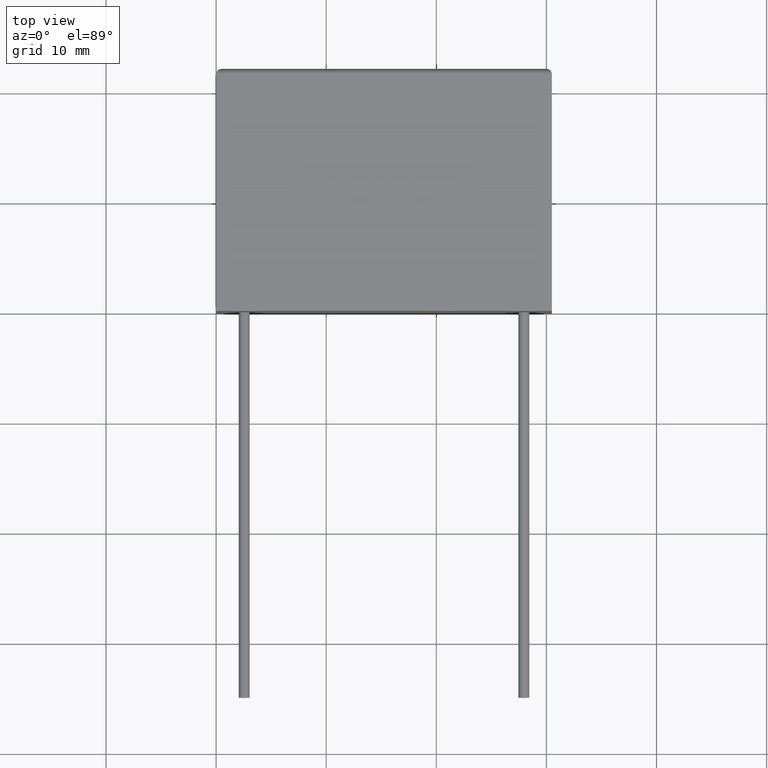
[diagram: clean part render]
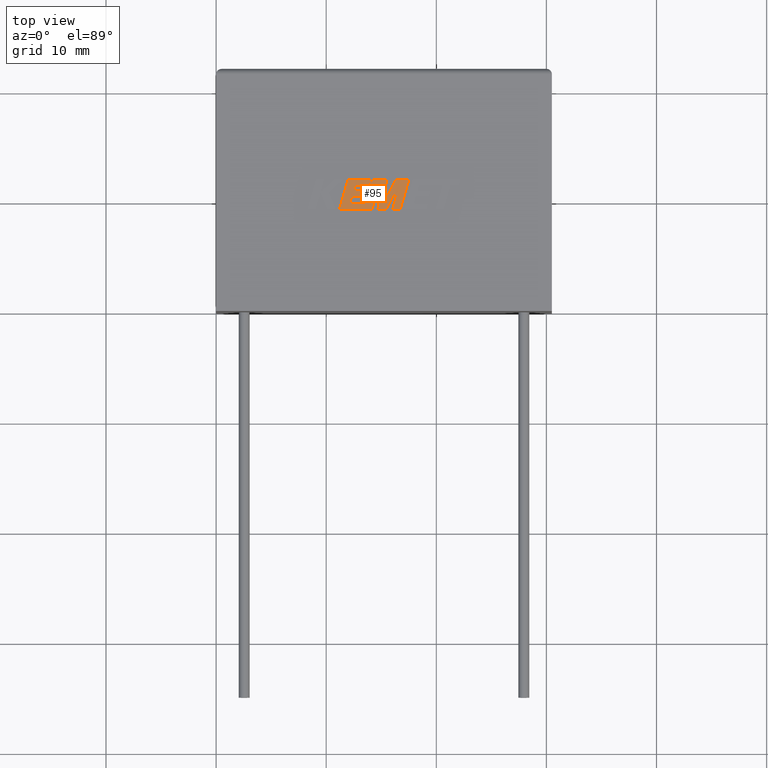
[diagram: same view with one face highlighted and labeled with its STEP entity id]
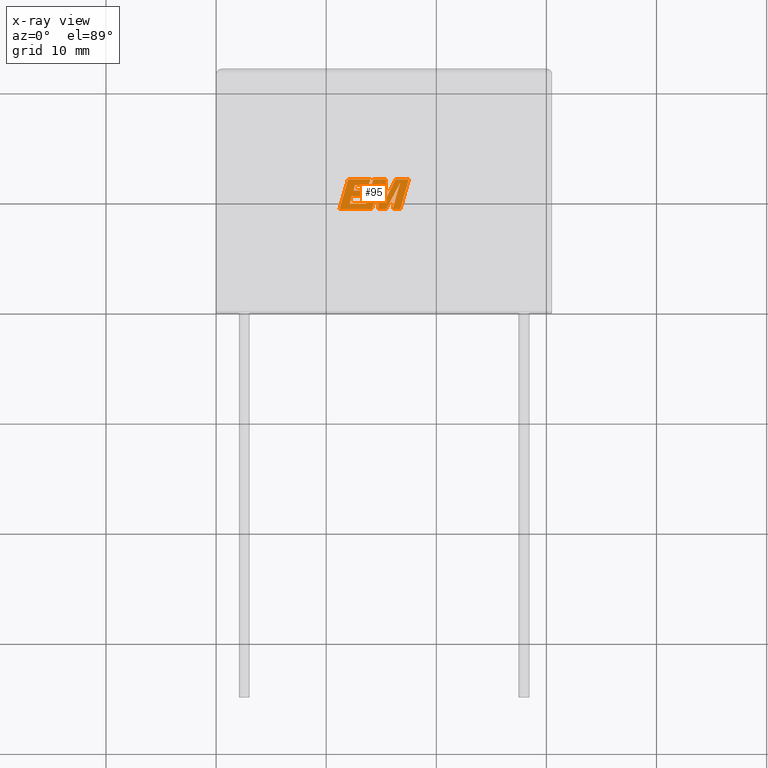
[diagram: x-ray of the same camera — body ghosted, the highlighted face saturated]
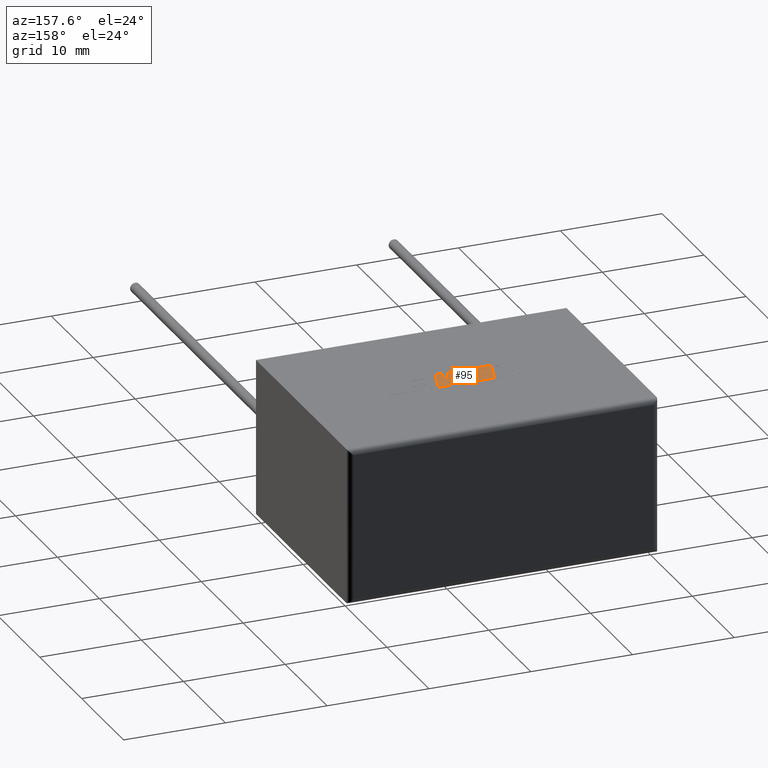
[diagram: same view with one face highlighted and labeled with its STEP entity id]
A machine part, top view. The second image highlights one B-rep face of the part: STEP entity #95.
The next image is the same camera in x-ray: the body ghosted, the highlighted face saturated — about 0% of this face is hidden behind the body in this view.
A second angle (auxiliary view) of the same face is appended — the face is thin or edge-on in the first view.
In plain terms, the highlighted planar face has unit normal (0, 0, -1).
Its self-contained STEP definition (entity closure, byte-faithful):
#1 = ORIENTED_EDGE ( 'NONE', *, *, #1128, .T. ) ;
#20 = DIRECTION ( 'NONE',  ( -1.000000000000000000, 0.0000000000000000000, 0.0000000000000000000 ) ) ;
#21 = LINE ( 'NONE', #993, #1970 ) ;
#33 = VERTEX_POINT ( 'NONE', #2070 ) ;
#34 = ORIENTED_EDGE ( 'NONE', *, *, #2232, .T. ) ;
#50 = EDGE_CURVE ( 'NONE', #2398, #33, #1109, .T. ) ;
#64 = ORIENTED_EDGE ( 'NONE', *, *, #50, .T. ) ;
#66 = EDGE_CURVE ( 'NONE', #1254, #1585, #2163, .T. ) ;
#95 = ADVANCED_FACE ( 'NONE', ( #868 ), #1743, .F. ) ;
#99 = VECTOR ( 'NONE', #597, 1000.000000000000100 ) ;
#112 = LINE ( 'NONE', #2297, #2450 ) ;
#122 = LINE ( 'NONE', #2294, #717 ) ;
#125 = VERTEX_POINT ( 'NONE', #390 ) ;
#127 = CARTESIAN_POINT ( 'NONE',  ( 13.86120531882747800, 11.43739126422981500, 15.30500000000000100 ) ) ;
#131 = DIRECTION ( 'NONE',  ( -1.000000000000000000, 0.0000000000000000000, 0.0000000000000000000 ) ) ;
#140 = CARTESIAN_POINT ( 'NONE',  ( 15.34034408245423200, 10.00511101898241300, 15.30500000000000100 ) ) ;
#147 = LINE ( 'NONE', #1558, #2341 ) ;
#149 = ORIENTED_EDGE ( 'NONE', *, *, #1234, .T. ) ;
#151 = ORIENTED_EDGE ( 'NONE', *, *, #2327, .T. ) ;
#158 = CARTESIAN_POINT ( 'NONE',  ( 14.84636241446146900, 11.65772222130387300, 15.30500000000000100 ) ) ;
#168 = CARTESIAN_POINT ( 'NONE',  ( 16.72921401211593600, 11.66943930093434600, 15.30500000000000100 ) ) ;
#185 = DIRECTION ( 'NONE',  ( -0.2765379750249970000, -0.9610029908221274800, 0.0000000000000000000 ) ) ;
#188 = EDGE_CURVE ( 'NONE', #1613, #1025, #122, .T. ) ;
#203 = CARTESIAN_POINT ( 'NONE',  ( 16.72921401211593600, 11.66943930093434600, 15.30500000000000100 ) ) ;
#216 = VERTEX_POINT ( 'NONE', #814 ) ;
#219 = VECTOR ( 'NONE', #534, 1000.000000000000100 ) ;
#226 = DIRECTION ( 'NONE',  ( -0.4443210308329521600, -0.8958676361826800600, 0.0000000000000000000 ) ) ;
#234 = ORIENTED_EDGE ( 'NONE', *, *, #1101, .T. ) ;
#243 = EDGE_CURVE ( 'NONE', #1580, #1550, #147, .T. ) ;
#303 = CARTESIAN_POINT ( 'NONE',  ( 13.86120531882747800, 11.43739126422981500, 15.30500000000000100 ) ) ;
#343 = VERTEX_POINT ( 'NONE', #2239 ) ;
#364 = EDGE_CURVE ( 'NONE', #2165, #343, #2048, .T. ) ;
#365 = DIRECTION ( 'NONE',  ( -1.000000000000000000, 0.0000000000000000000, 0.0000000000000000000 ) ) ;
#368 = AXIS2_PLACEMENT_3D ( 'NONE', #572, #1539, #20 ) ;
#389 = CARTESIAN_POINT ( 'NONE',  ( 11.98990460110053400, 11.95760467011252200, 15.30500000000000100 ) ) ;
#390 = CARTESIAN_POINT ( 'NONE',  ( 11.20345587573266000, 9.224599999999998800, 15.30500000000000100 ) ) ;
#395 = DIRECTION ( 'NONE',  ( 0.2763139702539114100, 0.9610674221107072800, 0.0000000000000000000 ) ) ;
#410 = ORIENTED_EDGE ( 'NONE', *, *, #1923, .T. ) ;
#523 = VECTOR ( 'NONE', #2082, 1000.000000000000000 ) ;
#533 = DIRECTION ( 'NONE',  ( 0.2746459304916891200, 0.9615454294334481200, 0.0000000000000000000 ) ) ;
#534 = DIRECTION ( 'NONE',  ( -0.05596501978069497200, -0.9984327301130238000, 0.0000000000000000000 ) ) ;
#558 = ORIENTED_EDGE ( 'NONE', *, *, #2094, .T. ) ;
#562 = CARTESIAN_POINT ( 'NONE',  ( 16.30871703926905200, 11.95760467011252200, 15.30500000000000100 ) ) ;
#563 = VERTEX_POINT ( 'NONE', #1406 ) ;
#572 = CARTESIAN_POINT ( 'NONE',  ( 0.04135901642317307800, 2.316512659225987900, 15.30500000000000100 ) ) ;
#597 = DIRECTION ( 'NONE',  ( 0.2759782365590722800, 0.9611638845408959600, 0.0000000000000000000 ) ) ;
#603 = LINE ( 'NONE', #1898, #99 ) ;
#608 = LINE ( 'NONE', #1714, #1102 ) ;
#648 = ORIENTED_EDGE ( 'NONE', *, *, #364, .T. ) ;
#694 = LINE ( 'NONE', #1033, #2266 ) ;
#703 = CARTESIAN_POINT ( 'NONE',  ( 13.64544485380194100, 9.744555796335491800, 15.30500000000000100 ) ) ;
#717 = VECTOR ( 'NONE', #365, 1000.000000000000000 ) ;
#724 = DIRECTION ( 'NONE',  ( 0.2740217765954059400, 0.9617234872620598100, 0.0000000000000000000 ) ) ;
#730 = EDGE_CURVE ( 'NONE', #901, #2165, #2406, .T. ) ;
#734 = LINE ( 'NONE', #2279, #1069 ) ;
#745 = EDGE_CURVE ( 'NONE', #1022, #1613, #1119, .T. ) ;
#774 = VECTOR ( 'NONE', #724, 1000.000000000000000 ) ;
#809 = VERTEX_POINT ( 'NONE', #562 ) ;
#814 = CARTESIAN_POINT ( 'NONE',  ( 14.84636241446146900, 11.65772222130387300, 15.30500000000000100 ) ) ;
#831 = VERTEX_POINT ( 'NONE', #2131 ) ;
#868 = FACE_OUTER_BOUND ( 'NONE', #1393, .T. ) ;
#870 = VERTEX_POINT ( 'NONE', #1291 ) ;
#899 = ORIENTED_EDGE ( 'NONE', *, *, #1592, .T. ) ;
#901 = VERTEX_POINT ( 'NONE', #2093 ) ;
#908 = VECTOR ( 'NONE', #1722, 1000.000000000000000 ) ;
#952 = CARTESIAN_POINT ( 'NONE',  ( 15.43857353521400100, 9.224599999999998800, 15.30500000000000100 ) ) ;
#979 = LINE ( 'NONE', #140, #2444 ) ;
#993 = CARTESIAN_POINT ( 'NONE',  ( 14.28155762827025300, 11.95760467011252200, 15.30500000000000100 ) ) ;
#995 = ORIENTED_EDGE ( 'NONE', *, *, #66, .T. ) ;
#1022 = VERTEX_POINT ( 'NONE', #1129 ) ;
#1025 = VERTEX_POINT ( 'NONE', #1155 ) ;
#1033 = CARTESIAN_POINT ( 'NONE',  ( 16.30871703926905200, 11.95760467011252200, 15.30500000000000100 ) ) ;
#1036 = VECTOR ( 'NONE', #1694, 1000.000000000000000 ) ;
#1069 = VECTOR ( 'NONE', #131, 1000.000000000000000 ) ;
#1080 = CARTESIAN_POINT ( 'NONE',  ( 14.14774192864402900, 9.224599999999998800, 15.30500000000000100 ) ) ;
#1101 = EDGE_CURVE ( 'NONE', #831, #1022, #112, .T. ) ;
#1102 = VECTOR ( 'NONE', #1302, 1000.000000000000000 ) ;
#1109 = LINE ( 'NONE', #1116, #1373 ) ;
#1116 = CARTESIAN_POINT ( 'NONE',  ( 14.70997893149140800, 9.224599999999998800, 15.30500000000000100 ) ) ;
#1119 = LINE ( 'NONE', #1697, #1181 ) ;
#1120 = DIRECTION ( 'NONE',  ( 0.2793947940878305800, 0.9601763114327590600, 0.0000000000000000000 ) ) ;
#1128 = EDGE_CURVE ( 'NONE', #2053, #870, #2187, .T. ) ;
#1129 = CARTESIAN_POINT ( 'NONE',  ( 13.49682907209673000, 10.42381401580202300, 15.30500000000000100 ) ) ;
#1141 = ORIENTED_EDGE ( 'NONE', *, *, #188, .T. ) ;
#1145 = DIRECTION ( 'NONE',  ( 0.4668459304955088200, 0.8843386665637675800, 0.0000000000000000000 ) ) ;
#1150 = VERTEX_POINT ( 'NONE', #1976 ) ;
#1155 = CARTESIAN_POINT ( 'NONE',  ( 12.46810271999845600, 10.92905282770972900, 15.30500000000000100 ) ) ;
#1158 = CARTESIAN_POINT ( 'NONE',  ( 13.64114028129114900, 10.92905282770972900, 15.30500000000000100 ) ) ;
#1181 = VECTOR ( 'NONE', #533, 1000.000000000000100 ) ;
#1218 = VECTOR ( 'NONE', #1530, 1000.000000000000000 ) ;
#1234 = EDGE_CURVE ( 'NONE', #343, #1953, #608, .T. ) ;
#1254 = VERTEX_POINT ( 'NONE', #1861 ) ;
#1258 = EDGE_CURVE ( 'NONE', #1585, #831, #1571, .T. ) ;
#1288 = CARTESIAN_POINT ( 'NONE',  ( 12.13041814687692700, 9.744555796335491800, 15.30500000000000100 ) ) ;
#1289 = ORIENTED_EDGE ( 'NONE', *, *, #2200, .T. ) ;
#1291 = CARTESIAN_POINT ( 'NONE',  ( 16.02713657230754400, 9.224599999999998800, 15.30500000000000100 ) ) ;
#1293 = ORIENTED_EDGE ( 'NONE', *, *, #1994, .T. ) ;
#1302 = DIRECTION ( 'NONE',  ( -1.000000000000000000, 0.0000000000000000000, 0.0000000000000000000 ) ) ;
#1330 = DIRECTION ( 'NONE',  ( -0.2760118818968581000, -0.9611542233438683500, 0.0000000000000000000 ) ) ;
#1359 = VECTOR ( 'NONE', #1145, 1000.000000000000000 ) ;
#1373 = VECTOR ( 'NONE', #1701, 1000.000000000000000 ) ;
#1375 = VERTEX_POINT ( 'NONE', #1080 ) ;
#1393 = EDGE_LOOP ( 'NONE', ( #2021, #1289, #410, #2220, #2144, #995, #1405, #234, #1768, #1141, #1293, #2317, #648, #149, #899, #1647, #151, #34, #64, #558, #1, #1494, #2364 ) ) ;
#1405 = ORIENTED_EDGE ( 'NONE', *, *, #1258, .T. ) ;
#1406 = CARTESIAN_POINT ( 'NONE',  ( 15.34034408245423200, 10.00511101898241300, 15.30500000000000100 ) ) ;
#1420 = DIRECTION ( 'NONE',  ( -1.000000000000000000, 0.0000000000000000000, 0.0000000000000000000 ) ) ;
#1448 = DIRECTION ( 'NONE',  ( -0.2762517575166415500, -0.9610853065513833600, 0.0000000000000000000 ) ) ;
#1492 = CARTESIAN_POINT ( 'NONE',  ( 12.61602046292478200, 11.43739126422981500, 15.30500000000000100 ) ) ;
#1494 = ORIENTED_EDGE ( 'NONE', *, *, #1557, .T. ) ;
#1530 = DIRECTION ( 'NONE',  ( 1.000000000000000000, 1.410797975395186500E-015, 0.0000000000000000000 ) ) ;
#1539 = DIRECTION ( 'NONE',  ( 0.0000000000000000000, 0.0000000000000000000, -1.000000000000000000 ) ) ;
#1550 = VERTEX_POINT ( 'NONE', #1710 ) ;
#1557 = EDGE_CURVE ( 'NONE', #870, #1580, #1736, .T. ) ;
#1558 = CARTESIAN_POINT ( 'NONE',  ( 16.72163530528773000, 9.224599999999998800, 15.30500000000000100 ) ) ;
#1571 = LINE ( 'NONE', #1288, #774 ) ;
#1580 = VERTEX_POINT ( 'NONE', #1913 ) ;
#1585 = VERTEX_POINT ( 'NONE', #2319 ) ;
#1592 = EDGE_CURVE ( 'NONE', #1953, #125, #2211, .T. ) ;
#1613 = VERTEX_POINT ( 'NONE', #1158 ) ;
#1647 = ORIENTED_EDGE ( 'NONE', *, *, #2039, .T. ) ;
#1673 = CARTESIAN_POINT ( 'NONE',  ( 11.20345587573266000, 9.224599999999998800, 15.30500000000000100 ) ) ;
#1674 = VECTOR ( 'NONE', #2246, 1000.000000000000100 ) ;
#1694 = DIRECTION ( 'NONE',  ( 1.000000000000000000, 3.986449806627419600E-016, 0.0000000000000000000 ) ) ;
#1697 = CARTESIAN_POINT ( 'NONE',  ( 13.49682907209673000, 10.42381401580202300, 15.30500000000000100 ) ) ;
#1701 = DIRECTION ( 'NONE',  ( 1.000000000000000000, 0.0000000000000000000, 0.0000000000000000000 ) ) ;
#1710 = CARTESIAN_POINT ( 'NONE',  ( 17.50739429965959800, 11.95760467011252200, 15.30500000000000100 ) ) ;
#1714 = CARTESIAN_POINT ( 'NONE',  ( 14.00895686204292000, 11.95760467011252200, 15.30500000000000100 ) ) ;
#1722 = DIRECTION ( 'NONE',  ( 1.000000000000000000, 0.0000000000000000000, 0.0000000000000000000 ) ) ;
#1734 = EDGE_CURVE ( 'NONE', #1550, #809, #2389, .T. ) ;
#1736 = LINE ( 'NONE', #2307, #1218 ) ;
#1742 = VECTOR ( 'NONE', #1330, 1000.000000000000100 ) ;
#1743 = PLANE ( 'NONE',  #368 ) ;
#1768 = ORIENTED_EDGE ( 'NONE', *, *, #745, .T. ) ;
#1806 = CARTESIAN_POINT ( 'NONE',  ( 14.70997893149140800, 9.224599999999998800, 15.30500000000000100 ) ) ;
#1809 = EDGE_CURVE ( 'NONE', #1150, #1254, #21, .T. ) ;
#1838 = LINE ( 'NONE', #158, #219 ) ;
#1861 = CARTESIAN_POINT ( 'NONE',  ( 13.64544485380194100, 9.744555796335491800, 15.30500000000000100 ) ) ;
#1869 = DIRECTION ( 'NONE',  ( 0.05375259206908614100, 0.9985542843760946100, 0.0000000000000000000 ) ) ;
#1898 = CARTESIAN_POINT ( 'NONE',  ( 14.14774192864402900, 9.224599999999998800, 15.30500000000000100 ) ) ;
#1907 = LINE ( 'NONE', #1673, #1036 ) ;
#1913 = CARTESIAN_POINT ( 'NONE',  ( 16.72163530528773000, 9.224599999999998800, 15.30500000000000100 ) ) ;
#1915 = DIRECTION ( 'NONE',  ( 1.000000000000000000, 0.0000000000000000000, 0.0000000000000000000 ) ) ;
#1923 = EDGE_CURVE ( 'NONE', #563, #2309, #979, .T. ) ;
#1953 = VERTEX_POINT ( 'NONE', #2233 ) ;
#1970 = VECTOR ( 'NONE', #1448, 1000.000000000000100 ) ;
#1976 = CARTESIAN_POINT ( 'NONE',  ( 14.28155762827025300, 11.95760467011252200, 15.30500000000000100 ) ) ;
#1994 = EDGE_CURVE ( 'NONE', #1025, #901, #2301, .T. ) ;
#2021 = ORIENTED_EDGE ( 'NONE', *, *, #1734, .T. ) ;
#2039 = EDGE_CURVE ( 'NONE', #125, #1375, #1907, .T. ) ;
#2048 = LINE ( 'NONE', #127, #1674 ) ;
#2053 = VERTEX_POINT ( 'NONE', #203 ) ;
#2064 = VECTOR ( 'NONE', #1120, 1000.000000000000100 ) ;
#2070 = CARTESIAN_POINT ( 'NONE',  ( 15.43857353521400100, 9.224599999999998800, 15.30500000000000100 ) ) ;
#2082 = DIRECTION ( 'NONE',  ( -1.000000000000000000, 0.0000000000000000000, 0.0000000000000000000 ) ) ;
#2093 = CARTESIAN_POINT ( 'NONE',  ( 12.61602046292478200, 11.43739126422981500, 15.30500000000000100 ) ) ;
#2094 = EDGE_CURVE ( 'NONE', #33, #2053, #2383, .T. ) ;
#2101 = VECTOR ( 'NONE', #185, 1000.000000000000200 ) ;
#2131 = CARTESIAN_POINT ( 'NONE',  ( 12.32395771051506900, 10.42381401580202300, 15.30500000000000100 ) ) ;
#2144 = ORIENTED_EDGE ( 'NONE', *, *, #1809, .T. ) ;
#2152 = VECTOR ( 'NONE', #1420, 1000.000000000000000 ) ;
#2163 = LINE ( 'NONE', #703, #523 ) ;
#2165 = VERTEX_POINT ( 'NONE', #303 ) ;
#2187 = LINE ( 'NONE', #168, #1742 ) ;
#2200 = EDGE_CURVE ( 'NONE', #809, #563, #694, .T. ) ;
#2211 = LINE ( 'NONE', #389, #2101 ) ;
#2220 = ORIENTED_EDGE ( 'NONE', *, *, #2357, .T. ) ;
#2232 = EDGE_CURVE ( 'NONE', #216, #2398, #1838, .T. ) ;
#2233 = CARTESIAN_POINT ( 'NONE',  ( 11.98990460110053400, 11.95760467011252200, 15.30500000000000100 ) ) ;
#2239 = CARTESIAN_POINT ( 'NONE',  ( 14.00895686204292000, 11.95760467011252200, 15.30500000000000100 ) ) ;
#2246 = DIRECTION ( 'NONE',  ( 0.2732148821746286400, 0.9619530280415482500, 0.0000000000000000000 ) ) ;
#2266 = VECTOR ( 'NONE', #226, 1000.000000000000000 ) ;
#2279 = CARTESIAN_POINT ( 'NONE',  ( 15.44544762703744000, 11.95760467011252200, 15.30500000000000100 ) ) ;
#2294 = CARTESIAN_POINT ( 'NONE',  ( 13.64114028129114900, 10.92905282770972900, 15.30500000000000100 ) ) ;
#2297 = CARTESIAN_POINT ( 'NONE',  ( 12.32395771051506900, 10.42381401580202300, 15.30500000000000100 ) ) ;
#2301 = LINE ( 'NONE', #2400, #2064 ) ;
#2307 = CARTESIAN_POINT ( 'NONE',  ( 16.02713657230754400, 9.224599999999998800, 15.30500000000000100 ) ) ;
#2309 = VERTEX_POINT ( 'NONE', #2365 ) ;
#2317 = ORIENTED_EDGE ( 'NONE', *, *, #730, .T. ) ;
#2319 = CARTESIAN_POINT ( 'NONE',  ( 12.13041814687692700, 9.744555796335491800, 15.30500000000000100 ) ) ;
#2327 = EDGE_CURVE ( 'NONE', #1375, #216, #603, .T. ) ;
#2341 = VECTOR ( 'NONE', #395, 1000.000000000000200 ) ;
#2357 = EDGE_CURVE ( 'NONE', #2309, #1150, #734, .T. ) ;
#2361 = CARTESIAN_POINT ( 'NONE',  ( 17.50739429965959800, 11.95760467011252200, 15.30500000000000100 ) ) ;
#2364 = ORIENTED_EDGE ( 'NONE', *, *, #243, .T. ) ;
#2365 = CARTESIAN_POINT ( 'NONE',  ( 15.44544762703744000, 11.95760467011252200, 15.30500000000000100 ) ) ;
#2383 = LINE ( 'NONE', #952, #1359 ) ;
#2389 = LINE ( 'NONE', #2361, #2152 ) ;
#2398 = VERTEX_POINT ( 'NONE', #1806 ) ;
#2400 = CARTESIAN_POINT ( 'NONE',  ( 12.46810271999845600, 10.92905282770972900, 15.30500000000000100 ) ) ;
#2406 = LINE ( 'NONE', #1492, #908 ) ;
#2444 = VECTOR ( 'NONE', #1869, 1000.000000000000000 ) ;
#2450 = VECTOR ( 'NONE', #1915, 1000.000000000000000 ) ;